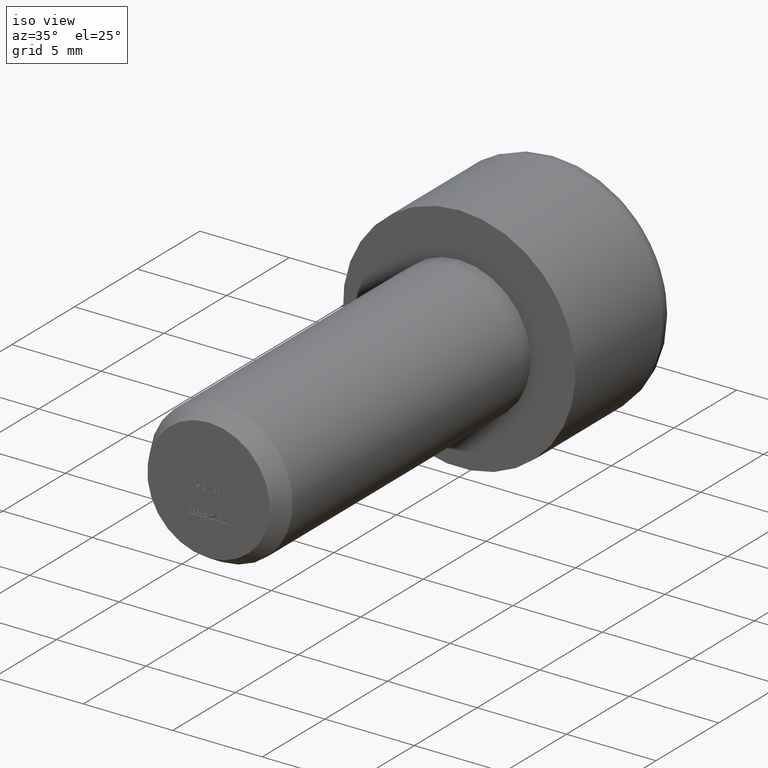
[diagram: clean part render]
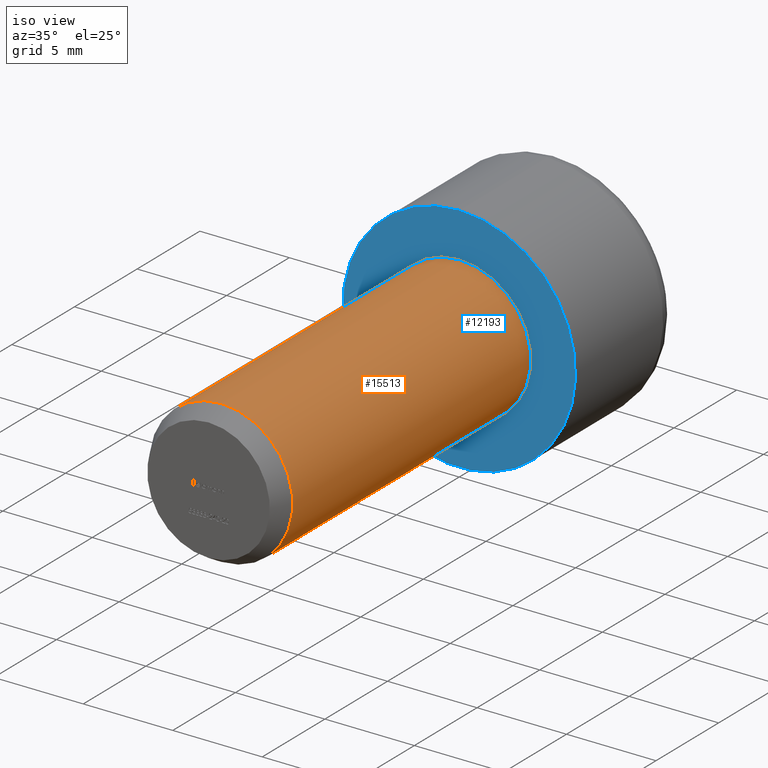
[diagram: same view with the hole feature highlighted: cylindrical wall and planar end face, labeled with their STEP entity ids]
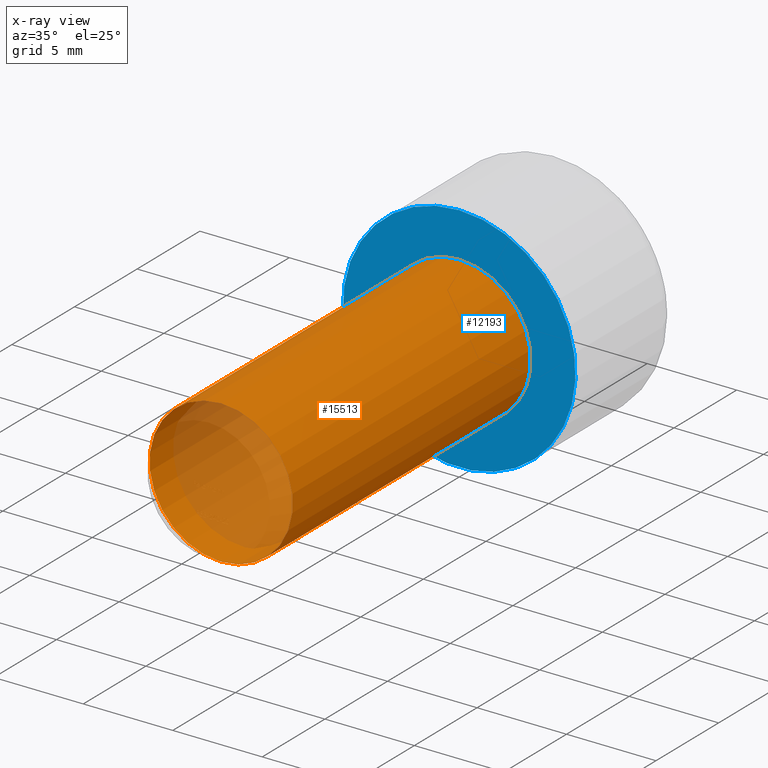
[diagram: x-ray of the same camera — body ghosted, the hole faces saturated]
A machine part, iso view. The highlighted faces form one hole feature of diameter 8 mm: the cylindrical wall (entity #15513, orange) and its adjacent planar end face (entity #12193, blue) — they share a circular edge in the B-rep.
The next image is the same camera in x-ray (body ghosted, the hole faces saturated) — the bore reads through the body.
Wall:
#420 = DIRECTION ( 'NONE',  ( 0.0000000000000000000, 0.0000000000000000000, 1.000000000000000000 ) ) ;
#658 = DIRECTION ( 'NONE',  ( 0.0000000000000000000, 0.0000000000000000000, 1.000000000000000000 ) ) ;
#828 = DIRECTION ( 'NONE',  ( 0.0000000000000000000, 0.0000000000000000000, -1.000000000000000000 ) ) ;
#995 = CARTESIAN_POINT ( 'NONE',  ( 0.0000000000000000000, -18.99999999999999600, 0.0000000000000000000 ) ) ;
#1948 = CARTESIAN_POINT ( 'NONE',  ( 0.0000000000000000000, 0.0000000000000000000, 0.0000000000000000000 ) ) ;
#2336 = DIRECTION ( 'NONE',  ( 0.0000000000000000000, 1.000000000000000000, 0.0000000000000000000 ) ) ;
#3553 = AXIS2_PLACEMENT_3D ( 'NONE', #7171, #5779, #420 ) ;
#4405 = AXIS2_PLACEMENT_3D ( 'NONE', #995, #2336, #828 ) ;
#4498 = VERTEX_POINT ( 'NONE', #12758 ) ;
#5102 = VERTEX_POINT ( 'NONE', #11513 ) ;
#5160 = FACE_OUTER_BOUND ( 'NONE', #12675, .T. ) ;
#5185 = AXIS2_PLACEMENT_3D ( 'NONE', #1948, #11286, #658 ) ;
#5779 = DIRECTION ( 'NONE',  ( -0.0000000000000000000, 1.000000000000000000, -0.0000000000000000000 ) ) ;
#6309 = EDGE_LOOP ( 'NONE', ( #10886 ) ) ;
#6318 = CIRCLE ( 'NONE', #4405, 4.000000000000000000 ) ;
#7034 = FACE_OUTER_BOUND ( 'NONE', #6309, .T. ) ;
#7171 = CARTESIAN_POINT ( 'NONE',  ( 0.0000000000000000000, -20.00000000000000000, 0.0000000000000000000 ) ) ;
#7348 = CIRCLE ( 'NONE', #5185, 4.000000000000000000 ) ;
#7753 = ORIENTED_EDGE ( 'NONE', *, *, #9299, .T. ) ;
#9299 = EDGE_CURVE ( 'NONE', #5102, #5102, #6318, .T. ) ;
#10886 = ORIENTED_EDGE ( 'NONE', *, *, #11340, .T. ) ;
#11286 = DIRECTION ( 'NONE',  ( -0.0000000000000000000, -1.000000000000000000, -0.0000000000000000000 ) ) ;
#11340 = EDGE_CURVE ( 'NONE', #4498, #4498, #7348, .T. ) ;
#11513 = CARTESIAN_POINT ( 'NONE',  ( 0.0000000000000000000, -18.99999999999999600, -4.000000000000000000 ) ) ;
#12675 = EDGE_LOOP ( 'NONE', ( #7753 ) ) ;
#12758 = CARTESIAN_POINT ( 'NONE',  ( 0.0000000000000000000, 0.0000000000000000000, 4.000000000000000000 ) ) ;
#14945 = CYLINDRICAL_SURFACE ( 'NONE', #3553, 4.000000000000000000 ) ;
#15513 = ADVANCED_FACE ( 'NONE', ( #5160, #7034 ), #14945, .T. ) ;
End face:
#658 = DIRECTION ( 'NONE',  ( 0.0000000000000000000, 0.0000000000000000000, 1.000000000000000000 ) ) ;
#1487 = AXIS2_PLACEMENT_3D ( 'NONE', #6269, #16950, #2237 ) ;
#1948 = CARTESIAN_POINT ( 'NONE',  ( 0.0000000000000000000, 0.0000000000000000000, 0.0000000000000000000 ) ) ;
#2237 = DIRECTION ( 'NONE',  ( 0.0000000000000000000, 0.0000000000000000000, 1.000000000000000000 ) ) ;
#3872 = PLANE ( 'NONE',  #6898 ) ;
#4498 = VERTEX_POINT ( 'NONE', #12758 ) ;
#5185 = AXIS2_PLACEMENT_3D ( 'NONE', #1948, #11286, #658 ) ;
#5462 = ORIENTED_EDGE ( 'NONE', *, *, #6191, .F. ) ;
#5877 = FACE_BOUND ( 'NONE', #5924, .T. ) ;
#5924 = EDGE_LOOP ( 'NONE', ( #16199 ) ) ;
#6191 = EDGE_CURVE ( 'NONE', #13859, #13859, #12027, .T. ) ;
#6269 = CARTESIAN_POINT ( 'NONE',  ( 0.0000000000000000000, 0.0000000000000000000, 0.0000000000000000000 ) ) ;
#6898 = AXIS2_PLACEMENT_3D ( 'NONE', #7829, #9183, #14575 ) ;
#7348 = CIRCLE ( 'NONE', #5185, 4.000000000000000000 ) ;
#7829 = CARTESIAN_POINT ( 'NONE',  ( 0.0000000000000000000, 0.0000000000000000000, 0.0000000000000000000 ) ) ;
#9183 = DIRECTION ( 'NONE',  ( 0.0000000000000000000, 1.000000000000000000, 0.0000000000000000000 ) ) ;
#10521 = EDGE_LOOP ( 'NONE', ( #5462 ) ) ;
#10672 = FACE_OUTER_BOUND ( 'NONE', #10521, .T. ) ;
#11286 = DIRECTION ( 'NONE',  ( -0.0000000000000000000, -1.000000000000000000, -0.0000000000000000000 ) ) ;
#11340 = EDGE_CURVE ( 'NONE', #4498, #4498, #7348, .T. ) ;
#11460 = CARTESIAN_POINT ( 'NONE',  ( 0.0000000000000000000, 0.0000000000000000000, 6.500000000000000900 ) ) ;
#12027 = CIRCLE ( 'NONE', #1487, 6.500000000000000900 ) ;
#12193 = ADVANCED_FACE ( 'NONE', ( #5877, #10672 ), #3872, .F. ) ;
#12758 = CARTESIAN_POINT ( 'NONE',  ( 0.0000000000000000000, 0.0000000000000000000, 4.000000000000000000 ) ) ;
#13859 = VERTEX_POINT ( 'NONE', #11460 ) ;
#14575 = DIRECTION ( 'NONE',  ( 0.0000000000000000000, -0.0000000000000000000, 1.000000000000000000 ) ) ;
#16199 = ORIENTED_EDGE ( 'NONE', *, *, #11340, .F. ) ;
#16950 = DIRECTION ( 'NONE',  ( 0.0000000000000000000, 1.000000000000000000, 0.0000000000000000000 ) ) ;